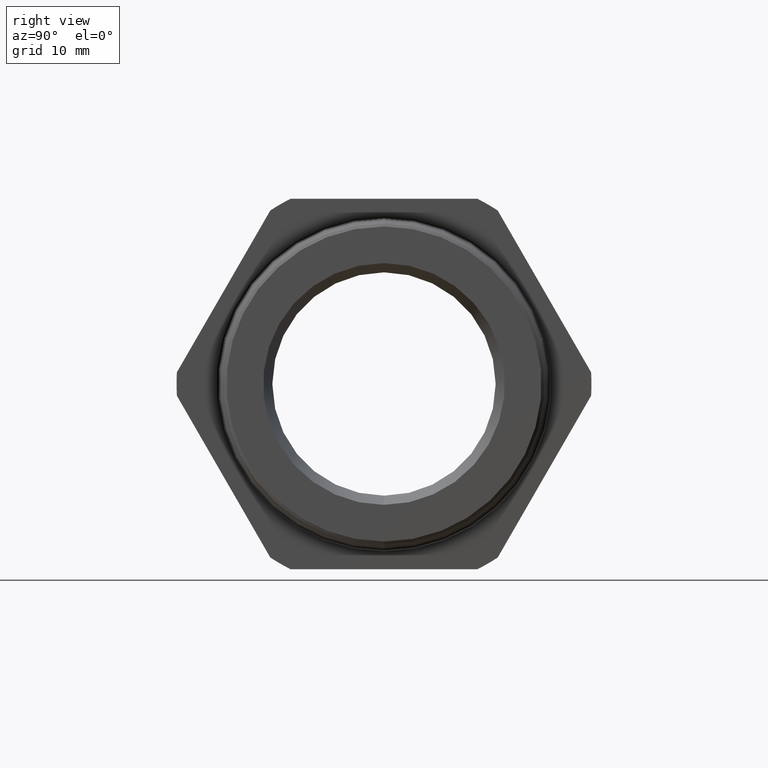
[diagram: clean part render]
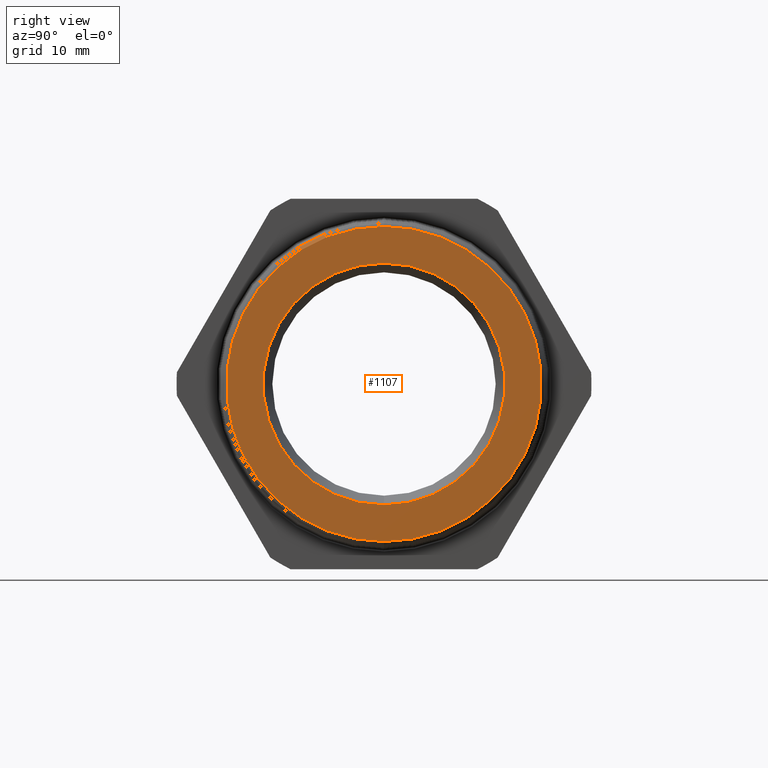
[diagram: same view with one face highlighted and labeled with its STEP entity id]
A machine part, right view. The second image highlights one B-rep face of the part: STEP entity #1107.
In plain terms, the highlighted planar face has unit normal (-1, 0, 0).
Its self-contained STEP definition (entity closure, byte-faithful):
#205 = VERTEX_POINT ( 'NONE', #1788 ) ;
#953 = VERTEX_POINT ( 'NONE', #3066 ) ;
#955 = EDGE_CURVE ( 'NONE', #956, #953, #3127, .T. ) ;
#956 = VERTEX_POINT ( 'NONE', #3122 ) ;
#1054 = EDGE_LOOP ( 'NONE', ( #1108, #1109 ) ) ;
#1107 = ADVANCED_FACE ( 'NONE', ( #3375, #3374 ), #3373, .F. ) ;
#1108 = ORIENTED_EDGE ( 'NONE', *, *, #955, .T. ) ;
#1109 = ORIENTED_EDGE ( 'NONE', *, *, #1110, .T. ) ;
#1110 = EDGE_CURVE ( 'NONE', #953, #956, #3368, .T. ) ;
#1111 = EDGE_LOOP ( 'NONE', ( #1112, #1114 ) ) ;
#1112 = ORIENTED_EDGE ( 'NONE', *, *, #1113, .F. ) ;
#1113 = EDGE_CURVE ( 'NONE', #4446, #205, #3363, .T. ) ;
#1114 = ORIENTED_EDGE ( 'NONE', *, *, #4415, .F. ) ;
#1788 = CARTESIAN_POINT ( 'NONE',  ( 0.7900000000000000400, 1.088246492799175700E-016, 0.8886206974589371300 ) ) ;
#3066 = CARTESIAN_POINT ( 'NONE',  ( 0.7899999999999998100, 8.353016972604898700E-017, 0.6820755975045699200 ) ) ;
#3122 = CARTESIAN_POINT ( 'NONE',  ( 0.7899999999999998100, 0.0000000000000000000, -0.6820755975045699200 ) ) ;
#3123 = DIRECTION ( 'NONE',  ( 0.0000000000000000000, 0.0000000000000000000, 1.000000000000000000 ) ) ;
#3124 = DIRECTION ( 'NONE',  ( -1.000000000000000000, 0.0000000000000000000, 0.0000000000000000000 ) ) ;
#3125 = CARTESIAN_POINT ( 'NONE',  ( 0.7899999999999998100, 0.0000000000000000000, 0.0000000000000000000 ) ) ;
#3126 = AXIS2_PLACEMENT_3D ( 'NONE', #3125, #3124, #3123 ) ;
#3127 = CIRCLE ( 'NONE', #3126, 0.6820755975045699200 ) ;
#3359 = DIRECTION ( 'NONE',  ( 0.0000000000000000000, 0.0000000000000000000, 1.000000000000000000 ) ) ;
#3360 = DIRECTION ( 'NONE',  ( -1.000000000000000000, 0.0000000000000000000, 0.0000000000000000000 ) ) ;
#3361 = CARTESIAN_POINT ( 'NONE',  ( 0.7900000000000000400, 0.0000000000000000000, 0.0000000000000000000 ) ) ;
#3362 = AXIS2_PLACEMENT_3D ( 'NONE', #3361, #3360, #3359 ) ;
#3363 = CIRCLE ( 'NONE', #3362, 0.8886206974589371300 ) ;
#3364 = DIRECTION ( 'NONE',  ( 0.0000000000000000000, 0.0000000000000000000, 1.000000000000000000 ) ) ;
#3365 = DIRECTION ( 'NONE',  ( -1.000000000000000000, 0.0000000000000000000, 0.0000000000000000000 ) ) ;
#3366 = CARTESIAN_POINT ( 'NONE',  ( 0.7899999999999998100, 0.0000000000000000000, 0.0000000000000000000 ) ) ;
#3367 = AXIS2_PLACEMENT_3D ( 'NONE', #3366, #3365, #3364 ) ;
#3368 = CIRCLE ( 'NONE', #3367, 0.6820755975045699200 ) ;
#3369 = DIRECTION ( 'NONE',  ( 0.0000000000000000000, 0.0000000000000000000, 1.000000000000000000 ) ) ;
#3370 = DIRECTION ( 'NONE',  ( -1.000000000000000000, 0.0000000000000000000, 0.0000000000000000000 ) ) ;
#3371 = CARTESIAN_POINT ( 'NONE',  ( 0.7900000000000000400, 0.9055078551022752700, 0.0000000000000000000 ) ) ;
#3372 = AXIS2_PLACEMENT_3D ( 'NONE', #3371, #3370, #3369 ) ;
#3373 = PLANE ( 'NONE',  #3372 ) ;
#3374 = FACE_OUTER_BOUND ( 'NONE', #1111, .T. ) ;
#3375 = FACE_BOUND ( 'NONE', #1054, .T. ) ;
#4183 = DIRECTION ( 'NONE',  ( 0.0000000000000000000, 0.0000000000000000000, 1.000000000000000000 ) ) ;
#4184 = DIRECTION ( 'NONE',  ( -1.000000000000000000, 0.0000000000000000000, 0.0000000000000000000 ) ) ;
#4185 = AXIS2_PLACEMENT_3D ( 'NONE', #4190, #4184, #4183 ) ;
#4186 = CIRCLE ( 'NONE', #4185, 0.8886206974589371300 ) ;
#4190 = CARTESIAN_POINT ( 'NONE',  ( 0.7900000000000000400, 0.0000000000000000000, 0.0000000000000000000 ) ) ;
#4205 = CARTESIAN_POINT ( 'NONE',  ( 0.7900000000000000400, 0.0000000000000000000, -0.8886206974589371300 ) ) ;
#4415 = EDGE_CURVE ( 'NONE', #205, #4446, #4186, .T. ) ;
#4446 = VERTEX_POINT ( 'NONE', #4205 ) ;